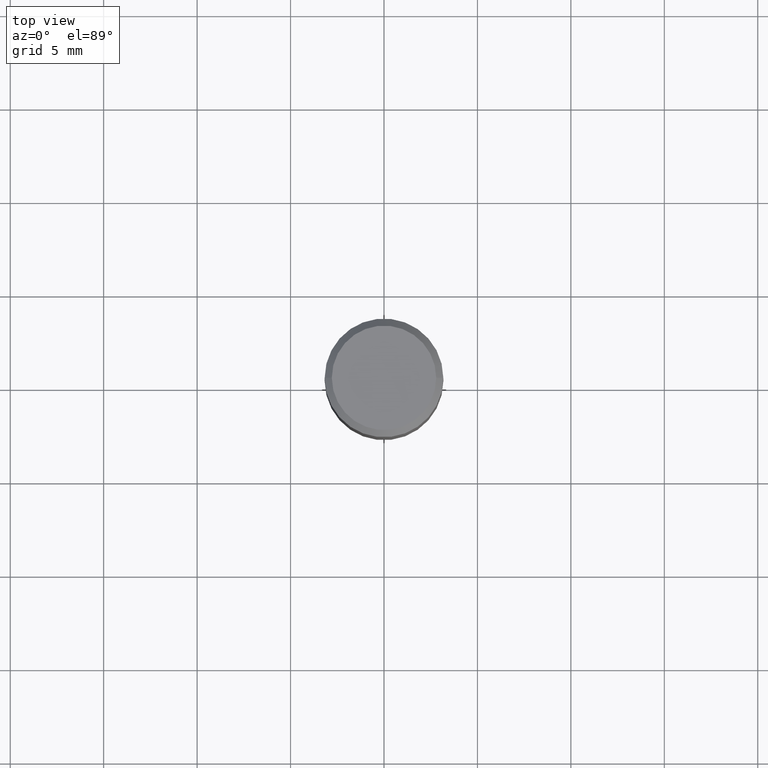
[diagram: clean part render]
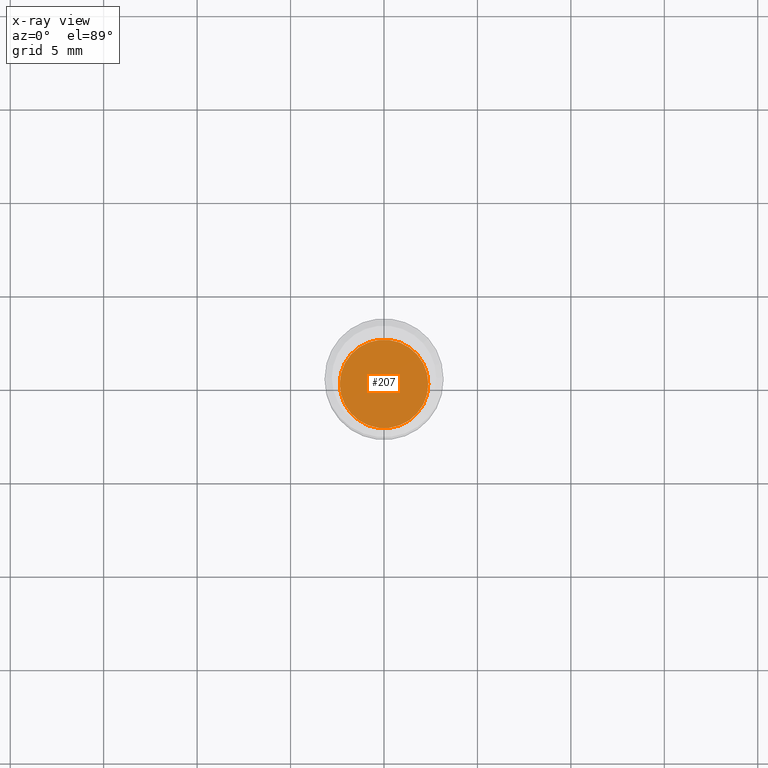
[diagram: x-ray — body ghosted, one internal face saturated and labeled with its STEP entity id]
A machine part, top view, then the same camera in x-ray: the body is ghosted and one INTERNAL B-rep face — a face not visible from any outside direction — is saturated and labeled: STEP entity #207.
In plain terms, the highlighted planar face has unit normal (-0, 0, 1).
Its self-contained STEP definition (entity closure, byte-faithful):
#24 = AXIS2_PLACEMENT_3D ( 'NONE', #121, #87, #430 ) ;
#46 = DIRECTION ( 'NONE',  ( -2.445468806185136597E-29, 3.491481338843145583E-15, 1.000000000000000000 ) ) ;
#87 = DIRECTION ( 'NONE',  ( -2.445468806185136597E-29, 3.491481338843145583E-15, 1.000000000000000000 ) ) ;
#121 = CARTESIAN_POINT ( 'NONE',  ( 1.834101604638853008E-29, -2.618611004132359877E-15, -0.7500000000000002220 ) ) ;
#142 = DIRECTION ( 'NONE',  ( -2.438088387897960049E-29, 3.491481338843145188E-15, 1.000000000000000000 ) ) ;
#163 = CIRCLE ( 'NONE', #325, 0.09324999999999999956 ) ;
#183 = CARTESIAN_POINT ( 'NONE',  ( 0.09324999999999999956, -3.269772273826604374E-15, -0.7500000000000002220 ) ) ;
#190 = DIRECTION ( 'NONE',  ( 1.000000000000000000, -6.982962677686268288E-15, 0.000000000000000000 ) ) ;
#207 = ADVANCED_FACE ( 'NONE', ( #461 ), #351, .F. ) ;
#251 = CARTESIAN_POINT ( 'NONE',  ( -0.09324999999999999956, -1.953380675861954073E-15, -0.7500000000000002220 ) ) ;
#262 = VERTEX_POINT ( 'NONE', #183 ) ;
#281 = VERTEX_POINT ( 'NONE', #251 ) ;
#284 = CARTESIAN_POINT ( 'NONE',  ( 1.834101604638853008E-29, -2.618611004132359877E-15, -0.7500000000000002220 ) ) ;
#323 = DIRECTION ( 'NONE',  ( 1.000000000000000000, -6.982962677686265922E-15, 4.876176775795935793E-29 ) ) ;
#325 = AXIS2_PLACEMENT_3D ( 'NONE', #363, #46, #190 ) ;
#329 = EDGE_LOOP ( 'NONE', ( #398, #416 ) ) ;
#351 = PLANE ( 'NONE',  #406 ) ;
#363 = CARTESIAN_POINT ( 'NONE',  ( 1.834101604638853008E-29, -2.618611004132359877E-15, -0.7500000000000002220 ) ) ;
#398 = ORIENTED_EDGE ( 'NONE', *, *, #457, .F. ) ;
#406 = AXIS2_PLACEMENT_3D ( 'NONE', #284, #142, #323 ) ;
#416 = ORIENTED_EDGE ( 'NONE', *, *, #466, .F. ) ;
#430 = DIRECTION ( 'NONE',  ( 1.000000000000000000, -6.982962677686268288E-15, 0.000000000000000000 ) ) ;
#457 = EDGE_CURVE ( 'NONE', #262, #281, #163, .T. ) ;
#461 = FACE_OUTER_BOUND ( 'NONE', #329, .T. ) ;
#462 = CIRCLE ( 'NONE', #24, 0.09324999999999999956 ) ;
#466 = EDGE_CURVE ( 'NONE', #281, #262, #462, .T. ) ;